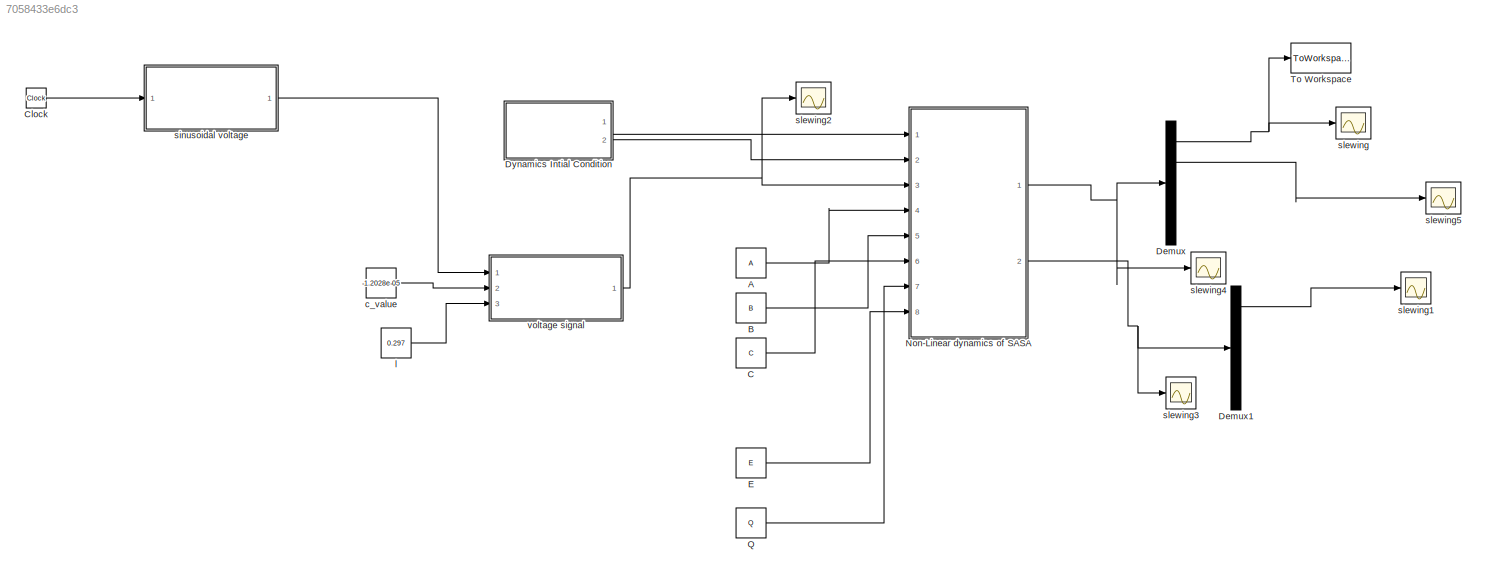
MODEL slx_7058433e6dc3
KIND model
CONFIG AbsTol = auto
CONFIG FixedStep = 1e-5
CONFIG MaxStep = auto
CONFIG MinStep = auto
CONFIG RelTol = 1e-3
CONFIG SampleTimeConstraint = Unconstrained
CONFIG Solver = ode3
CONFIG SolverMode = Auto
CONFIG SolverName = ode3
CONFIG StartTime = 0.0
CONFIG StopTime = 4
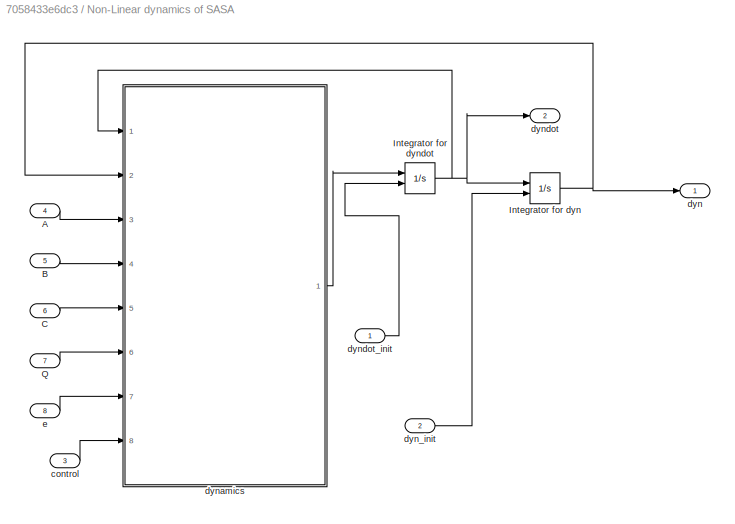
BLOCK [SubSystem]  Non-Linear dynamics of SASA
  Ports = [8, 2]
  RequestExecContextInheritance = off
  Variant = off
BLOCK [Inport]  Non-Linear dynamics of SASA/A
  IconDisplay = Port number
  Port = 4
BLOCK [Inport]  Non-Linear dynamics of SASA/B
  IconDisplay = Port number
  Port = 5
BLOCK [Inport]  Non-Linear dynamics of SASA/C
  IconDisplay = Port number
  Port = 6
BLOCK [Integrator]  Non-Linear dynamics of SASA/Integrator for dyn
  AbsoluteTolerance = 1e-3
  InitialCondition = -0.1
  InitialConditionSource = external
  Ports = [2, 1]
BLOCK [Integrator]  Non-Linear dynamics of SASA/Integrator for dyndot
  AbsoluteTolerance = 1e-10
  InitialCondition = -0.1
  InitialConditionSource = external
  LowerSaturationLimit = -1e20
  Ports = [2, 1]
  UpperSaturationLimit = 1e20
BLOCK [Inport]  Non-Linear dynamics of SASA/Q
  IconDisplay = Port number
  Port = 7
BLOCK [Inport]  Non-Linear dynamics of SASA/control
  IconDisplay = Port number
  Port = 3
BLOCK [Outport]  Non-Linear dynamics of SASA/dyn
  IconDisplay = Port number
BLOCK [Inport]  Non-Linear dynamics of SASA/dyn_init
  IconDisplay = Port number
  Port = 2
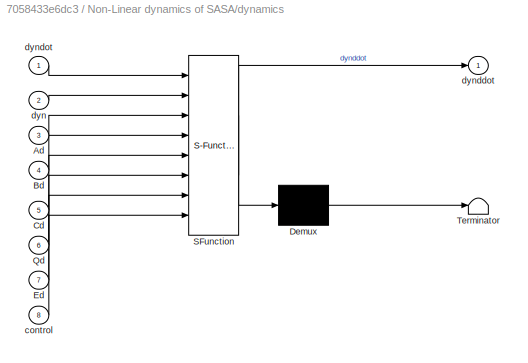
BLOCK [SubSystem]  Non-Linear dynamics of SASA/dynamics
  ErrorFcn = Stateflow.Translate.translate
  PermitHierarchicalResolution = ExplicitOnly
  Ports = [8, 1]
  RequestExecContextInheritance = off
  SFBlockType = MATLAB Function
  TreatAsAtomicUnit = on
  Variant = off
BLOCK [Demux]  Non-Linear dynamics of SASA/dynamics/ Demux 
  Outputs = 1
  Ports = [1, 1]
BLOCK [S-Function]  Non-Linear dynamics of SASA/dynamics/ SFunction 
  EnableBusSupport = on
  FunctionName = sf_sfun
  PortCounts = [8 2]
  Ports = [8, 2]
  SFunctionDeploymentMode = off
  Tag = Stateflow S-Function openloop_SASA_original 2
BLOCK [Terminator]  Non-Linear dynamics of SASA/dynamics/ Terminator 
BLOCK [Inport]  Non-Linear dynamics of SASA/dynamics/Ad
  IconDisplay = Port number
  Port = 3
BLOCK [Inport]  Non-Linear dynamics of SASA/dynamics/Bd
  IconDisplay = Port number
  Port = 4
BLOCK [Inport]  Non-Linear dynamics of SASA/dynamics/Cd
  IconDisplay = Port number
  Port = 5
BLOCK [Inport]  Non-Linear dynamics of SASA/dynamics/Ed
  IconDisplay = Port number
  Port = 7
BLOCK [Inport]  Non-Linear dynamics of SASA/dynamics/Qd
  IconDisplay = Port number
  Port = 6
BLOCK [Inport]  Non-Linear dynamics of SASA/dynamics/control
  IconDisplay = Port number
  Port = 8
BLOCK [Inport]  Non-Linear dynamics of SASA/dynamics/dyn
  IconDisplay = Port number
  Port = 2
BLOCK [Outport]  Non-Linear dynamics of SASA/dynamics/dynddot
  IconDisplay = Port number
BLOCK [Inport]  Non-Linear dynamics of SASA/dynamics/dyndot
  IconDisplay = Port number
BLOCK [Outport]  Non-Linear dynamics of SASA/dyndot
  IconDisplay = Port number
  Port = 2
BLOCK [Inport]  Non-Linear dynamics of SASA/dyndot_init
  IconDisplay = Port number
BLOCK [Inport]  Non-Linear dynamics of SASA/e
  IconDisplay = Port number
  Port = 8
BLOCK [Constant] A
  Value = A
  VectorParams1D = off
BLOCK [Constant] B
  Value = B
  VectorParams1D = off
BLOCK [Constant] C
  Value = C
  VectorParams1D = off
BLOCK [Clock] Clock
BLOCK [Demux] Demux
  DisplayOption = bar
  Outputs = 5
  Ports = [1, 5]
BLOCK [Demux] Demux1
  DisplayOption = bar
  Outputs = 5
  Ports = [1, 5]
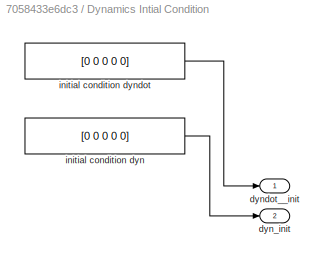
BLOCK [SubSystem] Dynamics Intial Condition
  Ports = [0, 2]
  RequestExecContextInheritance = off
  Variant = off
BLOCK [Outport] Dynamics Intial Condition/dyn_init
  IconDisplay = Port number
  Port = 2
BLOCK [Outport] Dynamics Intial Condition/dyndot__init
  IconDisplay = Port number
BLOCK [Constant] Dynamics Intial Condition/initial condition dyn
  Value = [0 0 0 0 0]
BLOCK [Constant] Dynamics Intial Condition/initial condition dyndot
  Value = [0 0 0 0 0]
BLOCK [Constant] E
  Value = E
  VectorParams1D = off
BLOCK [Constant] Q
  Value = Q
BLOCK [ToWorkspace] To Workspace
  FixptAsFi = on
  MaxDataPoints = inf
  Ports = [1]
  SampleTime = -1
  Save2DSignal = 3-D array (concatenate along third dimension)
  SaveFormat = Timeseries
  VariableName = theta_sim
BLOCK [Constant] c_value
  Value = -1.2028e-05
BLOCK [Constant] l
  Value = 0.297
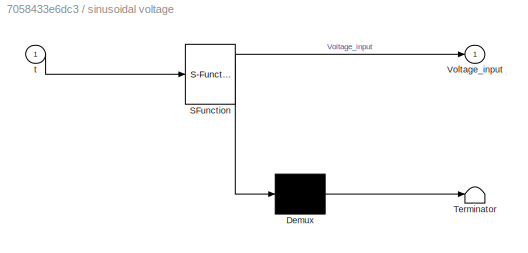
BLOCK [SubSystem] sinusoidal voltage
  ErrorFcn = Stateflow.Translate.translate
  PermitHierarchicalResolution = ExplicitOnly
  Ports = [1, 1]
  RequestExecContextInheritance = off
  SFBlockType = MATLAB Function
  TreatAsAtomicUnit = on
  Variant = off
BLOCK [Demux] sinusoidal voltage/ Demux 
  Outputs = 1
  Ports = [1, 1]
BLOCK [S-Function] sinusoidal voltage/ SFunction 
  EnableBusSupport = on
  FunctionName = sf_sfun
  PortCounts = [1 2]
  Ports = [1, 2]
  SFunctionDeploymentMode = off
  Tag = Stateflow S-Function openloop_SASA_original 3
BLOCK [Terminator] sinusoidal voltage/ Terminator 
BLOCK [Outport] sinusoidal voltage/Voltage_input
  IconDisplay = Port number
BLOCK [Inport] sinusoidal voltage/t
  IconDisplay = Port number
BLOCK [Scope] slewing
  Ports = [1]
  ScopeSpecificationString = Simulink.scopes.TimeScopeBlockCfg('CurrentConfiguration', extmgr.ConfigurationSet(extmgr.Configuration('Core','General UI',true),extmgr.Configuration('Core','Source UI',true),extmgr.Configuration('Sources','WiredSimulink',true),extmgr.Configuration('Visuals','Time Domain',true,'SerializedDisplays',{struct('MinYLimReal','-0.00073','MaxYLimReal','0.00655','YLabelReal','','MinYLimMag','0.00000','MaxY...<+1402ch>
BLOCK [Scope] slewing1
  Ports = [1]
  ScopeSpecificationString = Simulink.scopes.TimeScopeBlockCfg('CurrentConfiguration', extmgr.ConfigurationSet(extmgr.Configuration('Core','General UI',true),extmgr.Configuration('Core','Source UI',true),extmgr.Configuration('Sources','WiredSimulink',true,'DataLoggingVariableName','ScopeData1'),extmgr.Configuration('Visuals','Time Domain',true,'SerializedDisplays',{struct('MinYLimReal','-0.02093','MaxYLimReal','0.02644','YLab...<+1441ch>
BLOCK [Scope] slewing2
  Ports = [1]
  ScopeSpecificationString = Simulink.scopes.TimeScopeBlockCfg('CurrentConfiguration', extmgr.ConfigurationSet(extmgr.Configuration('Core','General UI',true),extmgr.Configuration('Core','Source UI',true),extmgr.Configuration('Sources','WiredSimulink',true,'DataLoggingVariableName','ScopeData1'),extmgr.Configuration('Visuals','Time Domain',true,'SerializedDisplays',{struct('MinYLimReal','-0.38151','MaxYLimReal','0.20627','YLab...<+1503ch>
BLOCK [Scope] slewing3
  Ports = [1]
  ScopeSpecificationString = Simulink.scopes.TimeScopeBlockCfg('CurrentConfiguration', extmgr.ConfigurationSet(extmgr.Configuration('Core','General UI',true),extmgr.Configuration('Core','Source UI',true),extmgr.Configuration('Sources','WiredSimulink',true,'DataLoggingVariableName','ScopeData1'),extmgr.Configuration('Visuals','Time Domain',true,'SerializedDisplays',{struct('MinYLimReal','-0.02093','MaxYLimReal','0.02644','YLab...<+1602ch>
BLOCK [Scope] slewing4
  Ports = [1]
  ScopeSpecificationString = Simulink.scopes.TimeScopeBlockCfg('CurrentConfiguration', extmgr.ConfigurationSet(extmgr.Configuration('Core','General UI',true),extmgr.Configuration('Core','Source UI',true),extmgr.Configuration('Sources','WiredSimulink',true,'DataLoggingVariableName','ScopeData2'),extmgr.Configuration('Visuals','Time Domain',true,'SerializedDisplays',{struct('MinYLimReal','-0.00322','MaxYLimReal','0.00322','YLab...<+1602ch>
BLOCK [Scope] slewing5
  Ports = [1]
  ScopeSpecificationString = Simulink.scopes.TimeScopeBlockCfg('CurrentConfiguration', extmgr.ConfigurationSet(extmgr.Configuration('Core','General UI',true),extmgr.Configuration('Core','Source UI',true),extmgr.Configuration('Sources','WiredSimulink',true,'DataLoggingVariableName','ScopeData1'),extmgr.Configuration('Visuals','Time Domain',true,'SerializedDisplays',{struct('MinYLimReal','-0.0001','MaxYLimReal','0.0001','YLabel...<+1457ch>
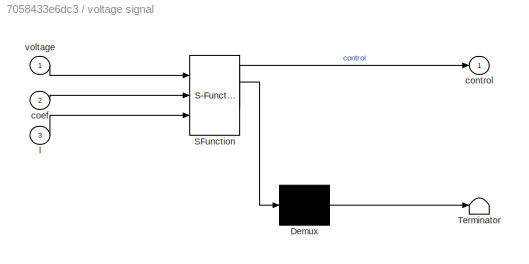
BLOCK [SubSystem] voltage signal
  ErrorFcn = Stateflow.Translate.translate
  PermitHierarchicalResolution = ExplicitOnly
  Ports = [3, 1]
  RequestExecContextInheritance = off
  SFBlockType = MATLAB Function
  TreatAsAtomicUnit = on
  Variant = off
BLOCK [Demux] voltage signal/ Demux 
  Outputs = 1
  Ports = [1, 1]
BLOCK [S-Function] voltage signal/ SFunction 
  EnableBusSupport = on
  FunctionName = sf_sfun
  PortCounts = [3 2]
  Ports = [3, 2]
  SFunctionDeploymentMode = off
  Tag = Stateflow S-Function openloop_SASA_original 9
BLOCK [Terminator] voltage signal/ Terminator 
BLOCK [Inport] voltage signal/coef
  IconDisplay = Port number
  Port = 2
BLOCK [Outport] voltage signal/control
  IconDisplay = Port number
BLOCK [Inport] voltage signal/l
  IconDisplay = Port number
  Port = 3
BLOCK [Inport] voltage signal/voltage
  IconDisplay = Port number
LINE  Non-Linear dynamics of SASA/A:1 ->  Non-Linear dynamics of SASA/dynamics:3
LINE  Non-Linear dynamics of SASA/B:1 ->  Non-Linear dynamics of SASA/dynamics:4
LINE  Non-Linear dynamics of SASA/C:1 ->  Non-Linear dynamics of SASA/dynamics:5
NET  Non-Linear dynamics of SASA/Integrator for dyn:1 ->  Non-Linear dynamics of SASA/dyn:1,  Non-Linear dynamics of SASA/dynamics:2
NET  Non-Linear dynamics of SASA/Integrator for dyndot:1 ->  Non-Linear dynamics of SASA/Integrator for dyn:1,  Non-Linear dynamics of SASA/dynamics:1,  Non-Linear dynamics of SASA/dyndot:1
LINE  Non-Linear dynamics of SASA/Q:1 ->  Non-Linear dynamics of SASA/dynamics:6
LINE  Non-Linear dynamics of SASA/control:1 ->  Non-Linear dynamics of SASA/dynamics:8
LINE  Non-Linear dynamics of SASA/dyn_init:1 ->  Non-Linear dynamics of SASA/Integrator for dyn:2
LINE  Non-Linear dynamics of SASA/dynamics:1 ->  Non-Linear dynamics of SASA/Integrator for dyndot:1
LINE  Non-Linear dynamics of SASA/dyndot_init:1 ->  Non-Linear dynamics of SASA/Integrator for dyndot:2
LINE  Non-Linear dynamics of SASA/e:1 ->  Non-Linear dynamics of SASA/dynamics:7
NET  Non-Linear dynamics of SASA:1 -> Demux:1, slewing4:1
NET  Non-Linear dynamics of SASA:2 -> Demux1:1, slewing3:1
LINE A:1 ->  Non-Linear dynamics of SASA:4
LINE B:1 ->  Non-Linear dynamics of SASA:5
LINE C:1 ->  Non-Linear dynamics of SASA:6
LINE Clock:1 -> sinusoidal voltage:1
LINE Demux1:1 -> slewing1:1
NET Demux:1 -> To Workspace:1, slewing:1
LINE Demux:2 -> slewing5:1
LINE Dynamics Intial Condition/initial condition dyn:1 -> Dynamics Intial Condition/dyn_init:1
LINE Dynamics Intial Condition/initial condition dyndot:1 -> Dynamics Intial Condition/dyndot__init:1
LINE Dynamics Intial Condition:1 ->  Non-Linear dynamics of SASA:1
LINE Dynamics Intial Condition:2 ->  Non-Linear dynamics of SASA:2
LINE E:1 ->  Non-Linear dynamics of SASA:8
LINE Q:1 ->  Non-Linear dynamics of SASA:7
LINE c_value:1 -> voltage signal:2
LINE l:1 -> voltage signal:3
LINE sinusoidal voltage:1 -> voltage signal:1
NET voltage signal:1 ->  Non-Linear dynamics of SASA:3, slewing2:1
note: NET lines group one-source signal fan-out (src -> all destinations, sorted); 1:1 wires keep LINE
CHART  Non-Linear dynamics of SASA/dynamics states=1 transitions=1
  STATE_LABEL 'eML_blk_kernel()'
  STATE_LABEL 'SCRIPT:\nfunction dynddot  = fcn(dyndot,dyn,Ad,Bd,Cd,Qd,Ed,control)\n%#codegen\n% function dynamics of spacecraft and the rightSA\n% generating matrices to use in the dynamics.\n% number of modes used =4 (we use 2nd order equations here)\n%dynamics of theta and eta\ndyndot1=dyndot(1);\ndyndot2=[dyndot(2);dyndot(3);dyndot(4);dyndot(5)];\ndyn2=[dyn(2);dyn(3);dyn(4);dyn(5)];\nAA= [Qd+2*(transpose(dyn2)*(Ad-Bd)...<+229ch>'
CHART sinusoidal voltage states=1 transitions=1
  STATE_LABEL 'eML_blk_kernel()'
  STATE_LABEL 'SCRIPT:\nfunction Voltage_input = fcn(t)\n\nVoltage_input=[40*sin(2*pi*1*t);0];\n'
CHART voltage signal states=1 transitions=1
  STATE_LABEL 'eML_blk_kernel()'
  STATE_LABEL 'SCRIPT:\nfunction control = fcn(voltage,coef,l)\n\nc=-coef;\n\nlp=7.244*10^-2; % length of the piezo\n% Piezo1 location \nlp_1=1.2*10^-2; % distance of the root of the piezo from that beamroot\nlp_2=lp_1+lp;\n% distance between Piezo 1 and Piezo 2 \ndpp=4.7*10^-3;\nlp1_1= lp_2+dpp;\nlp1_2= lp1_1+lp;\n\n\nphi1_l1=(pi^2*lp_1)/(l^2) +pi/l* sin((pi*lp_1)/l);\nphi2_l1=  - 2*(2*pi^2*lp_1)/l^2 +(2*pi/l)*sin((2*pi*lp_1)/...<+1141ch>'
